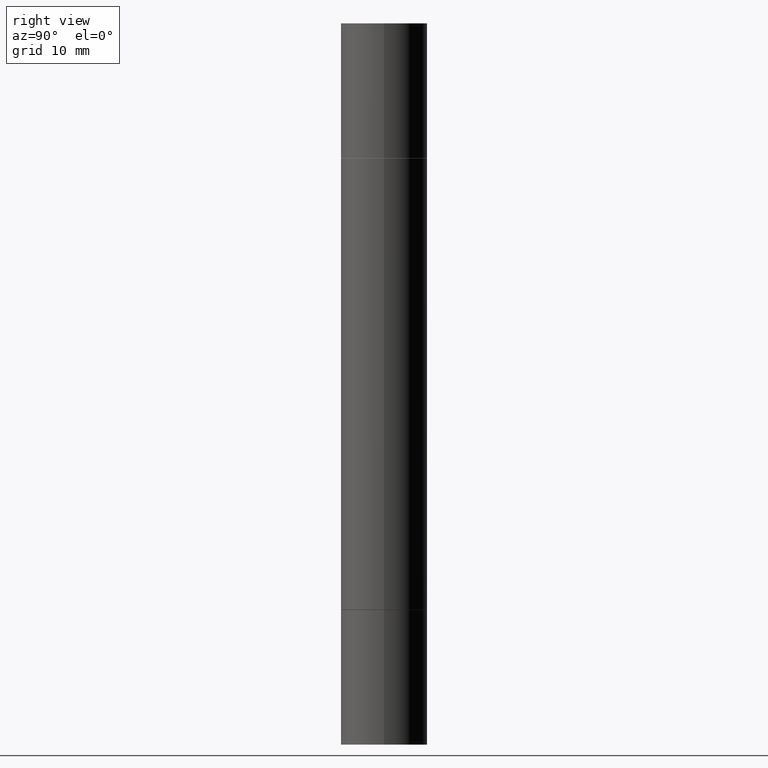
[diagram: clean part render]
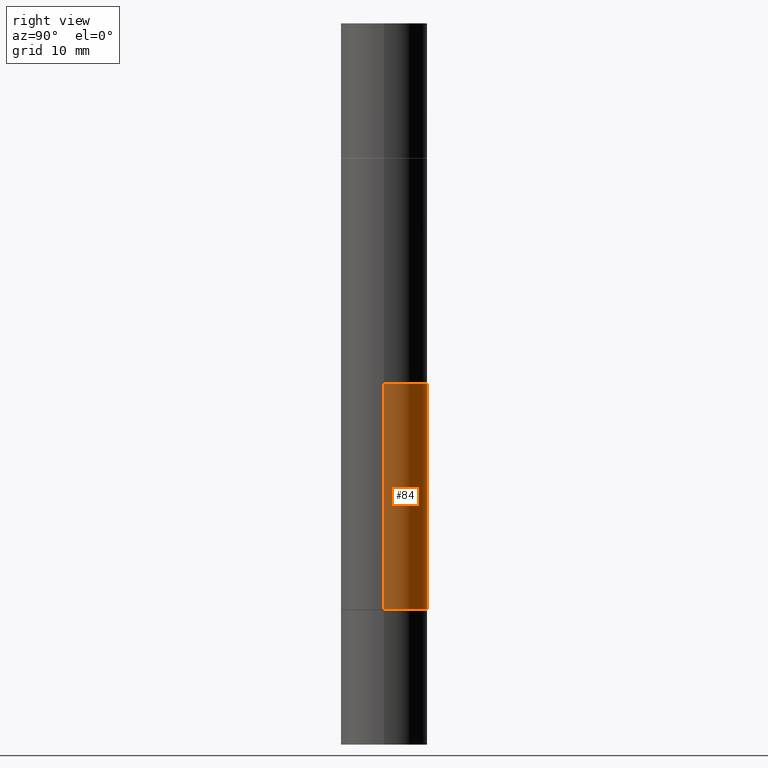
[diagram: same view with one face highlighted and labeled with its STEP entity id]
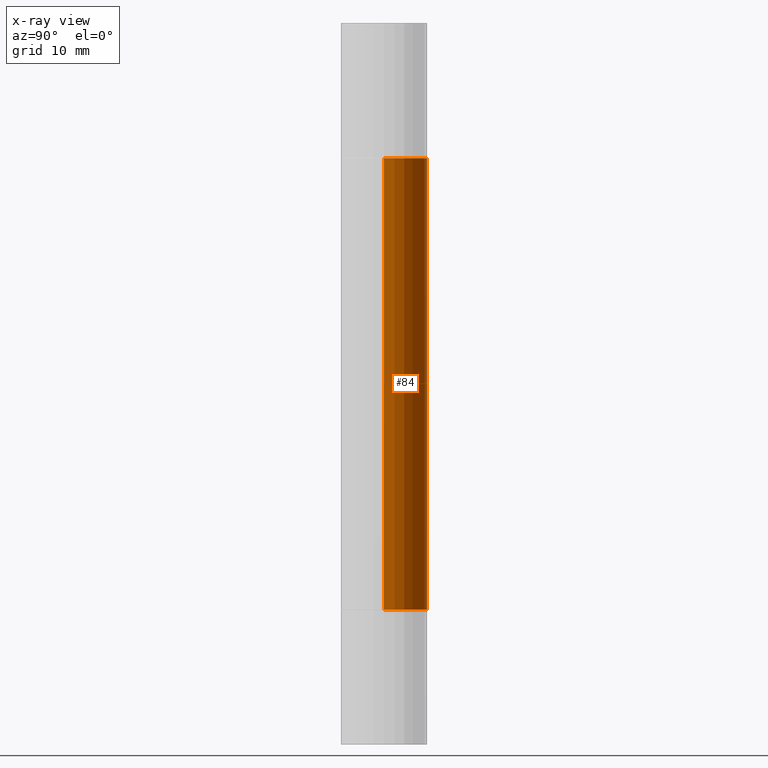
[diagram: x-ray of the same camera — body ghosted, the highlighted face saturated]
A machine part, right view. The second image highlights one B-rep face of the part: STEP entity #84.
The next image is the same camera in x-ray: the body ghosted, the highlighted face saturated — about 0% of this face is hidden behind the body in this view.
In plain terms, the highlighted cylindrical surface (partial cylindrical patch) has radius 4.4996 mm, axis along (-0, -0, -1).
Its self-contained STEP definition (entity closure, byte-faithful):
#17 = VECTOR ( 'NONE', #641, 39.37007874015748143 ) ;
#35 = DIRECTION ( 'NONE',  ( -2.445468806185136877E-29, -3.492890411551753071E-15, -1.000000000000000000 ) ) ;
#46 = EDGE_CURVE ( 'NONE', #370, #204, #356, .T. ) ;
#84 = ADVANCED_FACE ( 'NONE', ( #284 ), #495, .T. ) ;
#85 = CARTESIAN_POINT ( 'NONE',  ( 5.870592416128037625E-29, -8.381650102026854256E-15, -2.400599999999999401 ) ) ;
#114 = CARTESIAN_POINT ( 'NONE',  ( 0.1771500000000000019, -9.618681940378976650E-15, -2.400599999999999401 ) ) ;
#115 = EDGE_CURVE ( 'NONE', #322, #672, #398, .T. ) ;
#149 = DIRECTION ( 'NONE',  ( 2.445468806185136597E-29, 3.492890411551752677E-15, 1.000000000000000000 ) ) ;
#183 = DIRECTION ( 'NONE',  ( 1.000000000000000000, -6.982962677686266711E-15, 0.000000000000000000 ) ) ;
#203 = DIRECTION ( 'NONE',  ( 1.000000000000000000, -6.982962677686266711E-15, 0.000000000000000000 ) ) ;
#204 = VERTEX_POINT ( 'NONE', #567 ) ;
#208 = CARTESIAN_POINT ( 'NONE',  ( -0.1771500000000000019, -7.113565100066610661E-16, -0.5521999999999996911 ) ) ;
#210 = ORIENTED_EDGE ( 'NONE', *, *, #115, .F. ) ;
#274 = ORIENTED_EDGE ( 'NONE', *, *, #513, .T. ) ;
#284 = FACE_OUTER_BOUND ( 'NONE', #526, .T. ) ;
#291 = EDGE_CURVE ( 'NONE', #672, #204, #428, .T. ) ;
#297 = AXIS2_PLACEMENT_3D ( 'NONE', #510, #502, #403 ) ;
#309 = ORIENTED_EDGE ( 'NONE', *, *, #291, .F. ) ;
#319 = AXIS2_PLACEMENT_3D ( 'NONE', #85, #337, #183 ) ;
#322 = VERTEX_POINT ( 'NONE', #416 ) ;
#337 = DIRECTION ( 'NONE',  ( -2.445468806185136597E-29, 3.491481338843145583E-15, 1.000000000000000000 ) ) ;
#356 = CIRCLE ( 'NONE', #319, 0.1771500000000000019 ) ;
#370 = VERTEX_POINT ( 'NONE', #114 ) ;
#372 = CARTESIAN_POINT ( 'NONE',  ( -0.1771499999999998354, -9.096389231977799348E-15, -2.952799999999998981 ) ) ;
#391 = AXIS2_PLACEMENT_3D ( 'NONE', #553, #149, #203 ) ;
#398 = CIRCLE ( 'NONE', #391, 0.1771500000000000019 ) ;
#403 = DIRECTION ( 'NONE',  ( 1.000000000000000000, -6.982962677686268288E-15, 0.000000000000000000 ) ) ;
#416 = CARTESIAN_POINT ( 'NONE',  ( 0.1771500000000000019, -3.163725568664010262E-15, -0.5521999999999996911 ) ) ;
#428 = LINE ( 'NONE', #372, #17 ) ;
#467 = ORIENTED_EDGE ( 'NONE', *, *, #46, .T. ) ;
#495 = CYLINDRICAL_SURFACE ( 'NONE', #297, 0.1771499999999998354 ) ;
#502 = DIRECTION ( 'NONE',  ( -2.445468806185136597E-29, -3.492890411551752677E-15, -1.000000000000000000 ) ) ;
#510 = CARTESIAN_POINT ( 'NONE',  ( 0.000000000000000000, -1.031172645228302408E-14, -2.952799999999998981 ) ) ;
#513 = EDGE_CURVE ( 'NONE', #322, #370, #649, .T. ) ;
#526 = EDGE_LOOP ( 'NONE', ( #309, #210, #274, #467 ) ) ;
#553 = CARTESIAN_POINT ( 'NONE',  ( 5.870592416128037625E-29, -1.926693730311889446E-15, -0.5521999999999996911 ) ) ;
#567 = CARTESIAN_POINT ( 'NONE',  ( -0.1771500000000000019, -3.939485828362789011E-15, -2.400599999999999401 ) ) ;
#641 = DIRECTION ( 'NONE',  ( -2.445468806185136877E-29, -3.492890411551753071E-15, -1.000000000000000000 ) ) ;
#645 = VECTOR ( 'NONE', #35, 39.37007874015748143 ) ;
#649 = LINE ( 'NONE', #661, #645 ) ;
#661 = CARTESIAN_POINT ( 'NONE',  ( 0.1771499999999998354, -1.154875829063514490E-14, -2.952799999999998981 ) ) ;
#672 = VERTEX_POINT ( 'NONE', #208 ) ;